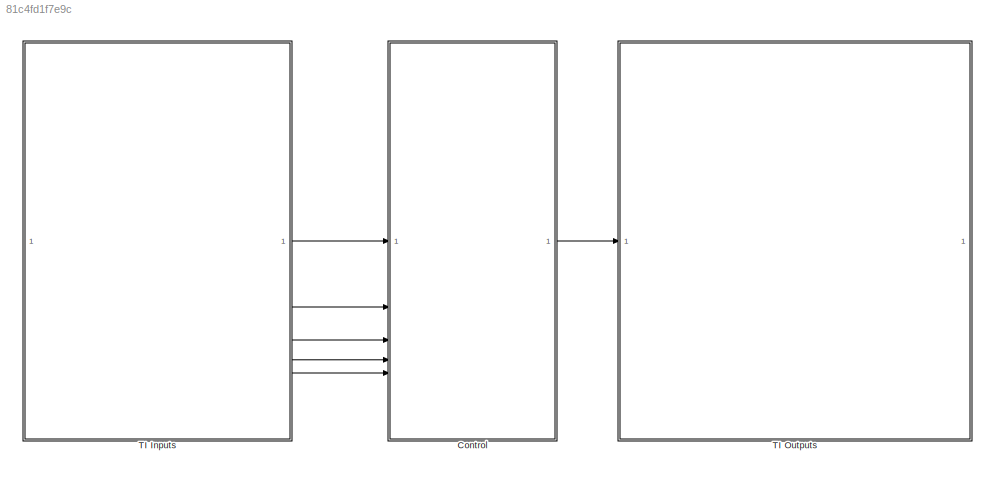
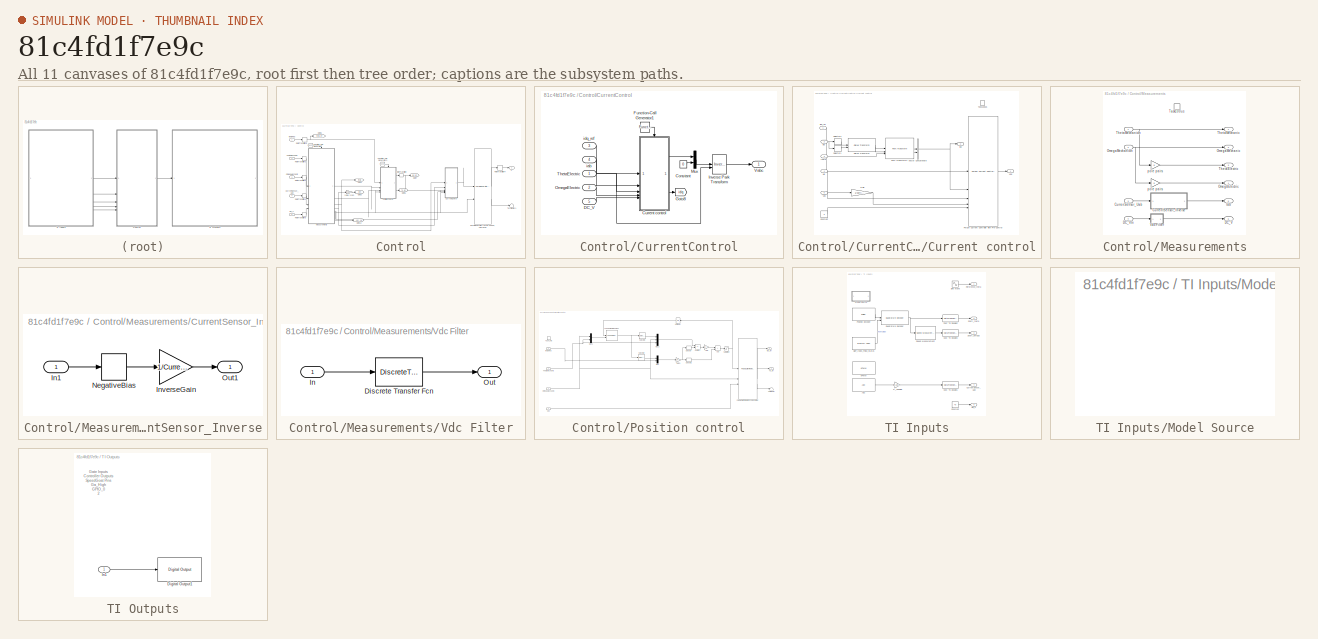
[diagram: thumbnail index - all 11 canvases of the model, root first then tree order]
MODEL slx_81c4fd1f7e9c
KIND model
CONFIG AbsTol = auto
CONFIG EnableMultiTasking = off
CONFIG FixedStep = auto
CONFIG MaxStep = auto
CONFIG MinStep = auto
CONFIG RelTol = 1e-3
CONFIG SampleTimeConstraint = Unconstrained
CONFIG SolverName = VariableStepAuto
CONFIG StartTime = 0.0
CONFIG StopTime = 10.0
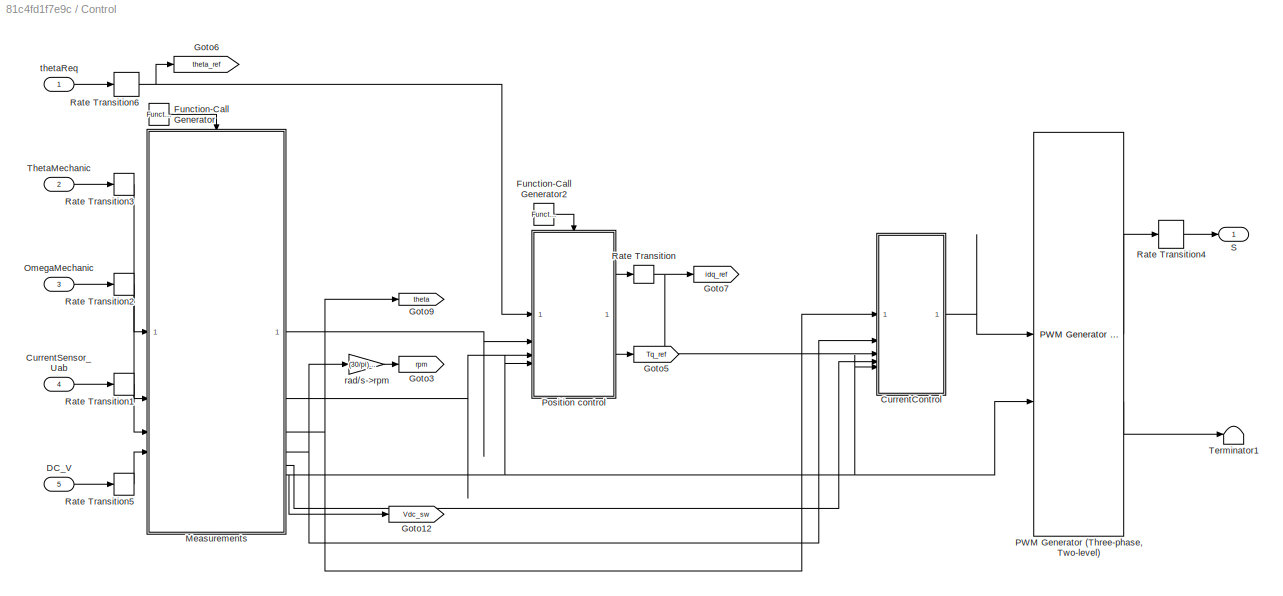
BLOCK [SubSystem] Control
  NameLocation = top
BLOCK [SubSystem] Control/CurrentControl
BLOCK [Constant] Control/CurrentControl/Constant
  SampleTime = -1
  Value = 0
BLOCK [SubSystem] Control/CurrentControl/Current control
BLOCK [Reference] Control/CurrentControl/Current control/Clarke Transform  REF=mcbcontrolslib/Clarke Transform
  LibrarySourceBlock = mcblib/Controls/Math Transforms/Clarke Transform
  SourceBlock = mcbcontrolslib/Clarke Transform
  SourceType = Clarke Transform
BLOCK [Constant] Control/CurrentControl/Current control/Constant
  SampleTime = -1
  Value = 0
BLOCK [Gain] Control/CurrentControl/Current control/Gain
  Gain = 1/sqrt(3)
BLOCK [Reference] Control/CurrentControl/Current control/PMSM Current Controller with Pre-Control  REF=eePmsmCurrentController/PMSM Current Controller
with Pre-Control
  SourceBlock = eePmsmCurrentController/PMSM Current Controller\nwith Pre-Control
  SourceType = PMSM Current Controller with Pre-Control
BLOCK [Reference] Control/CurrentControl/Current control/Park Transform1  REF=mcbcontrolslib/Park Transform
  LibrarySourceBlock = mcblib/Controls/Math Transforms/Park Transform
  SourceBlock = mcbcontrolslib/Park Transform
  SourceType = Park Transform
BLOCK [Selector] Control/CurrentControl/Current control/Selector1
  IndexOptions = Index vector (dialog)
  Indices = 2
  InputPortWidth = 2
  OutputSizes = 1
BLOCK [Selector] Control/CurrentControl/Current control/Selector2
  IndexOptions = Index vector (dialog)
  Indices = 1
  InputPortWidth = 2
  OutputSizes = 1
BLOCK [TriggerPort] Control/CurrentControl/Current control/Task100us
  PortDimensions = 1
  StatesWhenEnabling = held
  TriggerType = function-call
  VariantControl = Variant
BLOCK [Inport] Control/CurrentControl/Current control/Vdc
  Port = 5
BLOCK [Concatenate] Control/CurrentControl/Current control/Vector Concatenate
BLOCK [Inport] Control/CurrentControl/Current control/iab
  Port = 2
BLOCK [Outport] Control/CurrentControl/Current control/idq
  Port = 2
  VectorParamsAs1DForOutWhenUnconnected = off
BLOCK [Inport] Control/CurrentControl/Current control/idq_ref
BLOCK [Inport] Control/CurrentControl/Current control/theta
  Port = 3
BLOCK [Outport] Control/CurrentControl/Current control/vdq
  VectorParamsAs1DForOutWhenUnconnected = off
BLOCK [Inport] Control/CurrentControl/Current control/we
  Port = 4
BLOCK [Inport] Control/CurrentControl/DC_V
  Port = 5
BLOCK [Reference] Control/CurrentControl/Function-Call Generator1  REF=simulink/Ports &
Subsystems/Function-Call
Generator
  SourceBlock = simulink/Ports &\nSubsystems/Function-Call\nGenerator
  SourceType = Function-Call Generator
BLOCK [Goto] Control/CurrentControl/Goto8
  GotoTag = idq
  TagVisibility = global
BLOCK [Reference] Control/CurrentControl/Inverse Park Transform  REF=eeTransforms/Inverse
Park Transform
  SourceBlock = eeTransforms/Inverse\nPark Transform
  SourceType = Inverse Park Transform
BLOCK [Mux] Control/CurrentControl/Mux
  DisplayOption = bar
  Inputs = 2
BLOCK [Inport] Control/CurrentControl/OmegaElectric
  Port = 2
BLOCK [Inport] Control/CurrentControl/ThetaElectric
BLOCK [Outport] Control/CurrentControl/Vabc
BLOCK [Inport] Control/CurrentControl/iab
  Port = 4
BLOCK [Inport] Control/CurrentControl/idq_ref
  Port = 3
BLOCK [Inport] Control/CurrentSensor_Uab
  Port = 4
BLOCK [Inport] Control/DC_V
  Port = 5
BLOCK [Reference] Control/Function-Call Generator  REF=simulink/Ports &
Subsystems/Function-Call
Generator
  SourceBlock = simulink/Ports &\nSubsystems/Function-Call\nGenerator
  SourceType = Function-Call Generator
BLOCK [Reference] Control/Function-Call Generator2  REF=simulink/Ports &
Subsystems/Function-Call
Generator
  SourceBlock = simulink/Ports &\nSubsystems/Function-Call\nGenerator
  SourceType = Function-Call Generator
BLOCK [Goto] Control/Goto12
  GotoTag = Vdc_sw
  TagVisibility = global
BLOCK [Goto] Control/Goto3
  GotoTag = rpm
  TagVisibility = global
BLOCK [Goto] Control/Goto5
  GotoTag = Tq_ref
  TagVisibility = global
BLOCK [Goto] Control/Goto6
  GotoTag = theta_ref
  TagVisibility = global
BLOCK [Goto] Control/Goto7
  GotoTag = idq_ref
  TagVisibility = global
BLOCK [Goto] Control/Goto9
  GotoTag = theta
  TagVisibility = global
BLOCK [SubSystem] Control/Measurements
BLOCK [Inport] Control/Measurements/CurrenSensor_Uab
  Port = 3
BLOCK [SubSystem] Control/Measurements/CurrentSensor_Inverse
BLOCK [Inport] Control/Measurements/CurrentSensor_Inverse/In1
BLOCK [Gain] Control/Measurements/CurrentSensor_Inverse/InverseGain
  Gain = 1/CurrentSensor_Gain
BLOCK [Bias] Control/Measurements/CurrentSensor_Inverse/NegativeBias
  Bias = -CurrentSensor_Bias
  SaturateOnIntegerOverflow = off
BLOCK [Outport] Control/Measurements/CurrentSensor_Inverse/Out1
BLOCK [Outport] Control/Measurements/DC_V
  Port = 6
  VectorParamsAs1DForOutWhenUnconnected = off
BLOCK [Inport] Control/Measurements/DC_VIn
  Port = 4
BLOCK [Outport] Control/Measurements/Iab
  Port = 5
  VectorParamsAs1DForOutWhenUnconnected = off
BLOCK [Outport] Control/Measurements/OmegaElectric
  Port = 4
  VectorParamsAs1DForOutWhenUnconnected = off
BLOCK [Outport] Control/Measurements/OmegaMechanic
  Port = 2
  VectorParamsAs1DForOutWhenUnconnected = off
BLOCK [Inport] Control/Measurements/OmegaMechanicIn
  Port = 2
BLOCK [TriggerPort] Control/Measurements/Task100us
  PortDimensions = 1
  StatesWhenEnabling = held
  TriggerType = function-call
  VariantControl = Variant
BLOCK [Outport] Control/Measurements/ThetaElectric
  Port = 3
  VectorParamsAs1DForOutWhenUnconnected = off
BLOCK [Outport] Control/Measurements/ThetaMechanic
  VectorParamsAs1DForOutWhenUnconnected = off
BLOCK [Inport] Control/Measurements/ThetaMechanicIn
BLOCK [SubSystem] Control/Measurements/Vdc Filter
BLOCK [DiscreteTransferFcn] Control/Measurements/Vdc Filter/Discrete Transfer Fcn
  Denominator = den
  InputPortMap = u0
  Numerator = num
BLOCK [Inport] Control/Measurements/Vdc Filter/In
BLOCK [Outport] Control/Measurements/Vdc Filter/Out
  VectorParamsAs1DForOutWhenUnconnected = off
BLOCK [Gain] Control/Measurements/pole pairs
  Gain = p
BLOCK [Gain] Control/Measurements/pole pairs 
  Gain = p
BLOCK [Inport] Control/OmegaMechanic
  Port = 3
BLOCK [Reference] Control/PWM Generator (Three-phase, Two-level)  REF=eePwmGeneratorTwoLevel/PWM Generator
(Three-phase, Two-level)
  SourceBlock = eePwmGeneratorTwoLevel/PWM Generator\n(Three-phase, Two-level)
  SourceType = PWM Generator (three-phase, two-level)
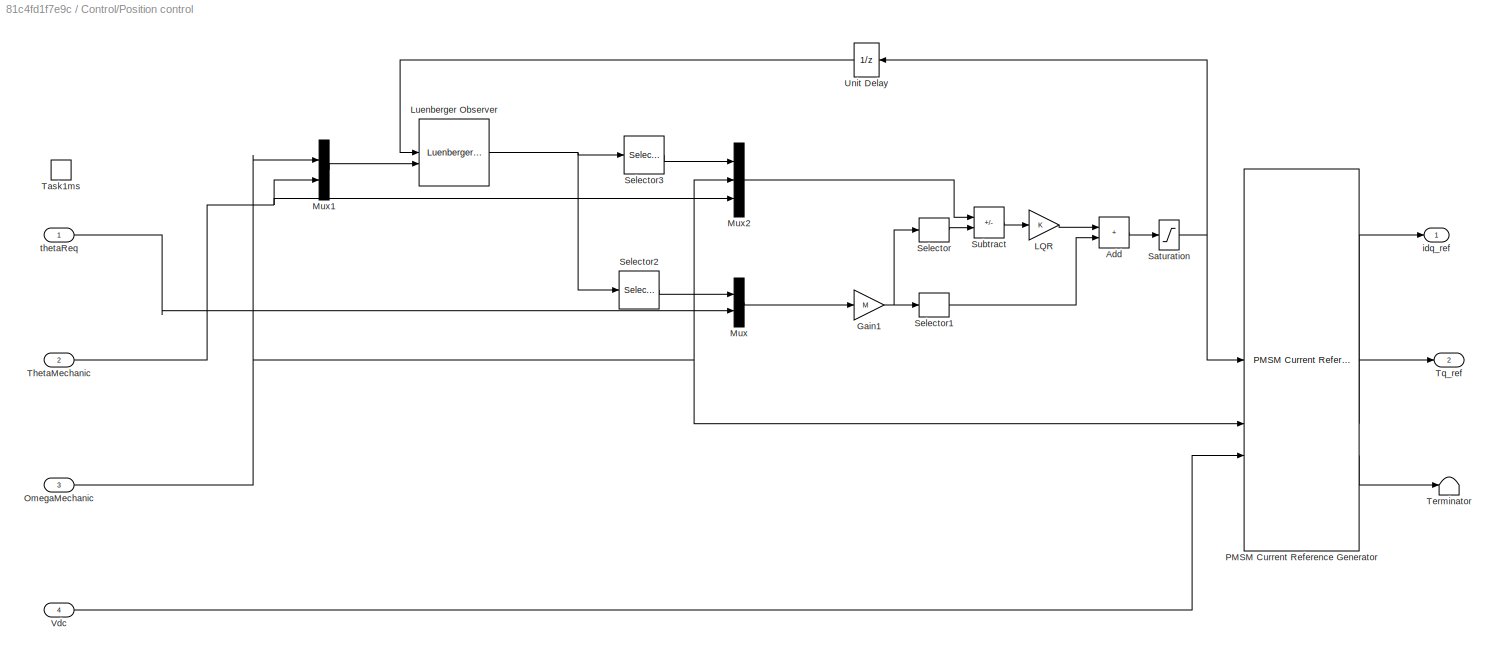
BLOCK [SubSystem] Control/Position control
BLOCK [Sum] Control/Position control/Add
  IconShape = rectangular
BLOCK [Gain] Control/Position control/Gain1
  Gain = M
  Multiplication = Matrix(K*u)
BLOCK [Gain] Control/Position control/LQR
  Gain = K
  Multiplication = Matrix(K*u)
BLOCK [Reference] Control/Position control/Luenberger Observer  REF=eeLuenbergerObserver/Luenberger Observer
  SourceBlock = eeLuenbergerObserver/Luenberger Observer
  SourceType = Luenberger Observer
BLOCK [Mux] Control/Position control/Mux
  DisplayOption = bar
  Inputs = 2
BLOCK [Mux] Control/Position control/Mux1
  DisplayOption = bar
  Inputs = 2
  NameLocation = top
BLOCK [Mux] Control/Position control/Mux2
  DisplayOption = bar
  Inputs = 3
BLOCK [Inport] Control/Position control/OmegaMechanic
  Port = 3
BLOCK [Reference] Control/Position control/PMSM Current Reference Generator  REF=eePmsmCurrentReferenceGen/PMSM Current Reference
Generator
  SourceBlock = eePmsmCurrentReferenceGen/PMSM Current Reference\nGenerator
  SourceType = PMSM Current Reference Generator
BLOCK [Saturate] Control/Position control/Saturation
  LowerLimit = -Tmax
  UpperLimit = Tmax
BLOCK [Selector] Control/Position control/Selector
  IndexOptions = Index vector (dialog)
  Indices = [1:3]
  InputPortWidth = 4
  OutputSizes = 1
BLOCK [Selector] Control/Position control/Selector1
  IndexOptions = Index vector (dialog)
  Indices = 4
  InputPortWidth = 4
  OutputSizes = 1
BLOCK [Selector] Control/Position control/Selector2
  IndexOptions = Index vector (dialog)
  Indices = [4]
  InputPortWidth = 4
  OutputSizes = 1
BLOCK [Selector] Control/Position control/Selector3
  IndexOptions = Index vector (dialog)
  Indices = [1]
  InputPortWidth = 4
  OutputSizes = 1
BLOCK [Sum] Control/Position control/Subtract
  IconShape = rectangular
  Inputs = +-
BLOCK [TriggerPort] Control/Position control/Task1ms
  PortDimensions = 1
  StatesWhenEnabling = held
  TriggerType = function-call
  VariantControl = Variant
BLOCK [Terminator] Control/Position control/Terminator
BLOCK [Inport] Control/Position control/ThetaMechanic
  Port = 2
BLOCK [Outport] Control/Position control/Tq_ref
  Port = 2
  VectorParamsAs1DForOutWhenUnconnected = off
BLOCK [UnitDelay] Control/Position control/Unit Delay
  HasFrameUpgradeWarning = on
  SampleTime = -1
BLOCK [Inport] Control/Position control/Vdc
  Port = 4
BLOCK [Outport] Control/Position control/idq_ref
  VectorParamsAs1DForOutWhenUnconnected = off
BLOCK [Inport] Control/Position control/thetaReq
BLOCK [RateTransition] Control/Rate Transition
BLOCK [RateTransition] Control/Rate Transition1
  OutPortSampleTime = Tsi
BLOCK [RateTransition] Control/Rate Transition2
  OutPortSampleTime = Tsi
BLOCK [RateTransition] Control/Rate Transition3
  OutPortSampleTime = Tsi
BLOCK [RateTransition] Control/Rate Transition4
  OutPortSampleTime = Ts
BLOCK [RateTransition] Control/Rate Transition5
  OutPortSampleTime = Tsi
BLOCK [RateTransition] Control/Rate Transition6
  OutPortSampleTime = Tso
BLOCK [Outport] Control/S
  VectorParamsAs1DForOutWhenUnconnected = off
BLOCK [Terminator] Control/Terminator1
BLOCK [Inport] Control/ThetaMechanic
  Port = 2
BLOCK [Gain] Control/rad//s->rpm
  Gain = (30/pi)/p
BLOCK [Inport] Control/thetaReq
BLOCK [SubSystem] TI Inputs
BLOCK [Reference] TI Inputs/ADC  REF=c2802xlib/ADC
  LibrarySourceBlock = c2806xlib/ADC
  SourceBlock = c2802xlib/ADC
  SourceType = ADC Type 3-5
  UserDataPersistent = on
BLOCK [DataTypeConversion] TI Inputs/Cast To Double1
  OutDataTypeStr = double
  RndMeth = Floor
  SaturateOnIntegerOverflow = off
BLOCK [DataTypeConversion] TI Inputs/Cast To Double2
  OutDataTypeStr = double
  RndMeth = Floor
  SaturateOnIntegerOverflow = off
BLOCK [DataTypeConversion] TI Inputs/Cast To Double3
  OutDataTypeStr = double
  RndMeth = Floor
  SaturateOnIntegerOverflow = off
BLOCK [Constant] TI Inputs/Constant
  Value = 48
BLOCK [Outport] TI Inputs/CurrentSensor_Uab
  Port = 4
BLOCK [Outport] TI Inputs/DC_V
  Port = 5
BLOCK [SubSystem] TI Inputs/Model Source
  CopyFcn = cccopyfcn(gcb)
  OpenFcn = ccopenfcn('Model Source')
BLOCK [Reference] TI Inputs/Position Encoder  REF=c280xlib/eQEP
  AttributesFormatString = -----------------------------\nIndex Interrupt = %<eqepinterrupt_iel>\nMax pos cnt = %<pcMaximumvalue>\nReset Mode = %<pcResetmode>
  SourceBlock = c280xlib/eQEP
  SourceType = C28x eQEP
BLOCK [Reference] TI Inputs/QEP_Index_Pulse_Status  REF=idelinklib_common/Memory Copy
  SourceBlock = idelinklib_common/Memory Copy
  SourceType = Memory Copy
BLOCK [Reference] TI Inputs/Quadrature Decoder  REF=mcbpositiondecoderlib/Quadrature Decoder
  SourceBlock = mcbpositiondecoderlib/Quadrature Decoder
  SourceType = Quadrature Decoder
BLOCK [Outport] TI Inputs/Reference_theta
BLOCK [Outport] TI Inputs/Shaft_omega
  Port = 3
BLOCK [Outport] TI Inputs/Shaft_theta
  Port = 2
BLOCK [Sin] TI Inputs/Sine Wave
  Amplitude = 1800
  Frequency = 0.05
  SampleTime = 0
BLOCK [Reference] TI Inputs/Speed Measurement  REF=mcbpositiondecoderlib/Speed Measurement
  SourceBlock = mcbpositiondecoderlib/Speed Measurement
  SourceType = Speed Measurement
BLOCK [Gain] TI Inputs/TI_ADCGain
  Gain = (TI_ADCMax-TI_ADCMin)/TI_ADCResolution+TI_ADCMin
BLOCK [Reference] TI Inputs/ePWM  REF=c2802xlib/ePWM
  LibrarySourceBlock = c2806xlib/ePWM
  SourceBlock = c2802xlib/ePWM
  SourceType = ePWM Type 1-4
  UserDataPersistent = on
BLOCK [SubSystem] TI Outputs
BLOCK [Reference] TI Outputs/Digital Output1  REF=c2806xlib/Digital Output
  SourceBlock = c2806xlib/Digital Output
  SourceType = C2806x GPIO Digital Output
  UserDataPersistent = on
BLOCK [Inport] TI Outputs/In1
ANNOTATION TI Outputs: Gate Inputs Controller Outputs SpeedGoat Pins Ga_High GPIO_0 2 Ga_Low GPIO_1 6 Gb_High GPIO_2 4 Gb_Low GPIO_3 1 Gc_High GPIO_4 5 Gc_Low GPIO_6 3
LINE Control/CurrentControl/Constant:1 -> Control/CurrentControl/Mux:2
LINE Control/CurrentControl/Current control/Clarke Transform:1 -> Control/CurrentControl/Current control/Park Transform1:1
LINE Control/CurrentControl/Current control/Clarke Transform:2 -> Control/CurrentControl/Current control/Park Transform1:2
LINE Control/CurrentControl/Current control/Constant:1 -> Control/CurrentControl/Current control/PMSM Current Controller with Pre-Control:5
LINE Control/CurrentControl/Current control/Gain:1 -> Control/CurrentControl/Current control/PMSM Current Controller with Pre-Control:4
LINE Control/CurrentControl/Current control/PMSM Current Controller with Pre-Control:1 -> Control/CurrentControl/Current control/vdq:1
LINE Control/CurrentControl/Current control/Park Transform1:1 -> Control/CurrentControl/Current control/Vector Concatenate:1
LINE Control/CurrentControl/Current control/Park Transform1:2 -> Control/CurrentControl/Current control/Vector Concatenate:2
LINE Control/CurrentControl/Current control/Selector1:1 -> Control/CurrentControl/Current control/Clarke Transform:2
LINE Control/CurrentControl/Current control/Selector2:1 -> Control/CurrentControl/Current control/Clarke Transform:1
LINE Control/CurrentControl/Current control/Vdc:1 -> Control/CurrentControl/Current control/Gain:1
NET Control/CurrentControl/Current control/Vector Concatenate:1 -> Control/CurrentControl/Current control/PMSM Current Controller with Pre-Control:2, Control/CurrentControl/Current control/idq:1
NET Control/CurrentControl/Current control/iab:1 -> Control/CurrentControl/Current control/Selector1:1, Control/CurrentControl/Current control/Selector2:1
LINE Control/CurrentControl/Current control/idq_ref:1 -> Control/CurrentControl/Current control/PMSM Current Controller with Pre-Control:1
LINE Control/CurrentControl/Current control/theta:1 -> Control/CurrentControl/Current control/Park Transform1:3
LINE Control/CurrentControl/Current control/we:1 -> Control/CurrentControl/Current control/PMSM Current Controller with Pre-Control:3
LINE Control/CurrentControl/Current control:1 -> Control/CurrentControl/Mux:1
LINE Control/CurrentControl/Current control:2 -> Control/CurrentControl/Goto8:1
LINE Control/CurrentControl/DC_V:1 -> Control/CurrentControl/Current control:5
LINE Control/CurrentControl/Function-Call Generator1:1 -> Control/CurrentControl/Current control:trigger
LINE Control/CurrentControl/Inverse Park Transform:1 -> Control/CurrentControl/Vabc:1
LINE Control/CurrentControl/Mux:1 -> Control/CurrentControl/Inverse Park Transform:1
LINE Control/CurrentControl/OmegaElectric:1 -> Control/CurrentControl/Current control:4
NET Control/CurrentControl/ThetaElectric:1 -> Control/CurrentControl/Current control:3, Control/CurrentControl/Inverse Park Transform:2
LINE Control/CurrentControl/iab:1 -> Control/CurrentControl/Current control:2
LINE Control/CurrentControl/idq_ref:1 -> Control/CurrentControl/Current control:1
LINE Control/CurrentControl:1 -> Control/PWM Generator (Three-phase, Two-level):1
LINE Control/CurrentSensor_Uab:1 -> Control/Rate Transition1:1
LINE Control/DC_V:1 -> Control/Rate Transition5:1
LINE Control/Function-Call Generator2:1 -> Control/Position control:trigger
LINE Control/Function-Call Generator:1 -> Control/Measurements:trigger
LINE Control/Measurements/CurrenSensor_Uab:1 -> Control/Measurements/CurrentSensor_Inverse:1
LINE Control/Measurements/CurrentSensor_Inverse/In1:1 -> Control/Measurements/CurrentSensor_Inverse/NegativeBias:1
LINE Control/Measurements/CurrentSensor_Inverse/InverseGain:1 -> Control/Measurements/CurrentSensor_Inverse/Out1:1
LINE Control/Measurements/CurrentSensor_Inverse/NegativeBias:1 -> Control/Measurements/CurrentSensor_Inverse/InverseGain:1
LINE Control/Measurements/CurrentSensor_Inverse:1 -> Control/Measurements/Iab:1
LINE Control/Measurements/DC_VIn:1 -> Control/Measurements/Vdc Filter:1
NET Control/Measurements/OmegaMechanicIn:1 -> Control/Measurements/OmegaMechanic:1, Control/Measurements/pole pairs:1
NET Control/Measurements/ThetaMechanicIn:1 -> Control/Measurements/ThetaMechanic:1, Control/Measurements/pole pairs :1
LINE Control/Measurements/Vdc Filter/Discrete Transfer Fcn:1 -> Control/Measurements/Vdc Filter/Out:1
LINE Control/Measurements/Vdc Filter/In:1 -> Control/Measurements/Vdc Filter/Discrete Transfer Fcn:1
LINE Control/Measurements/Vdc Filter:1 -> Control/Measurements/DC_V:1
LINE Control/Measurements/pole pairs :1 -> Control/Measurements/ThetaElectric:1
LINE Control/Measurements/pole pairs:1 -> Control/Measurements/OmegaElectric:1
LINE Control/Measurements:1 -> Control/Position control:2
LINE Control/Measurements:2 -> Control/Position control:3
NET Control/Measurements:3 -> Control/CurrentControl:1, Control/Goto9:1
NET Control/Measurements:4 -> Control/CurrentControl:2, Control/rad//s->rpm:1
LINE Control/Measurements:5 -> Control/CurrentControl:4
NET Control/Measurements:6 -> Control/CurrentControl:5, Control/Goto12:1, Control/PWM Generator (Three-phase, Two-level):2, Control/Position control:4
LINE Control/OmegaMechanic:1 -> Control/Rate Transition2:1
LINE Control/PWM Generator (Three-phase, Two-level):1 -> Control/Rate Transition4:1
LINE Control/PWM Generator (Three-phase, Two-level):2 -> Control/Terminator1:1
LINE Control/Position control/Add:1 -> Control/Position control/Saturation:1
NET Control/Position control/Gain1:1 -> Control/Position control/Selector1:1, Control/Position control/Selector:1
LINE Control/Position control/LQR:1 -> Control/Position control/Add:1
NET Control/Position control/Luenberger Observer:1 -> Control/Position control/Selector2:1, Control/Position control/Selector3:1
LINE Control/Position control/Mux1:1 -> Control/Position control/Luenberger Observer:2
LINE Control/Position control/Mux2:1 -> Control/Position control/Subtract:1
LINE Control/Position control/Mux:1 -> Control/Position control/Gain1:1
NET Control/Position control/OmegaMechanic:1 -> Control/Position control/Mux1:1, Control/Position control/Mux2:2, Control/Position control/PMSM Current Reference Generator:2
LINE Control/Position control/PMSM Current Reference Generator:1 -> Control/Position control/idq_ref:1
LINE Control/Position control/PMSM Current Reference Generator:2 -> Control/Position control/Tq_ref:1
LINE Control/Position control/PMSM Current Reference Generator:3 -> Control/Position control/Terminator:1
NET Control/Position control/Saturation:1 -> Control/Position control/PMSM Current Reference Generator:1, Control/Position control/Unit Delay:1
LINE Control/Position control/Selector1:1 -> Control/Position control/Add:2
LINE Control/Position control/Selector2:1 -> Control/Position control/Mux:1
LINE Control/Position control/Selector3:1 -> Control/Position control/Mux2:1
LINE Control/Position control/Selector:1 -> Control/Position control/Subtract:2
LINE Control/Position control/Subtract:1 -> Control/Position control/LQR:1
NET Control/Position control/ThetaMechanic:1 -> Control/Position control/Mux1:2, Control/Position control/Mux2:3
LINE Control/Position control/Unit Delay:1 -> Control/Position control/Luenberger Observer:1
LINE Control/Position control/Vdc:1 -> Control/Position control/PMSM Current Reference Generator:3
LINE Control/Position control/thetaReq:1 -> Control/Position control/Mux:2
LINE Control/Position control:1 -> Control/Rate Transition:1
LINE Control/Position control:2 -> Control/Goto5:1
LINE Control/Rate Transition1:1 -> Control/Measurements:3
LINE Control/Rate Transition2:1 -> Control/Measurements:2
LINE Control/Rate Transition3:1 -> Control/Measurements:1
LINE Control/Rate Transition4:1 -> Control/S:1
LINE Control/Rate Transition5:1 -> Control/Measurements:4
NET Control/Rate Transition6:1 -> Control/Goto6:1, Control/Position control:1
NET Control/Rate Transition:1 -> Control/CurrentControl:3, Control/Goto7:1
LINE Control/ThetaMechanic:1 -> Control/Rate Transition3:1
LINE Control/rad//s->rpm:1 -> Control/Goto3:1
LINE Control/thetaReq:1 -> Control/Rate Transition6:1
LINE Control:1 -> TI Outputs:1
LINE TI Inputs/ADC:1 -> TI Inputs/TI_ADCGain:1
LINE TI Inputs/Cast To Double1:1 -> TI Inputs/CurrentSensor_Uab:1
LINE TI Inputs/Cast To Double2:1 -> TI Inputs/Shaft_theta:1
LINE TI Inputs/Cast To Double3:1 -> TI Inputs/Shaft_omega:1
LINE TI Inputs/Constant:1 -> TI Inputs/DC_V:1
LINE TI Inputs/Position Encoder:1 -> TI Inputs/Quadrature Decoder:1
LINE TI Inputs/QEP_Index_Pulse_Status:1 -> TI Inputs/Quadrature Decoder:2
NET TI Inputs/Quadrature Decoder:1 -> TI Inputs/Cast To Double2:1, TI Inputs/Speed Measurement:1
LINE TI Inputs/Sine Wave:1 -> TI Inputs/Reference_theta:1
LINE TI Inputs/Speed Measurement:1 -> TI Inputs/Cast To Double3:1
LINE TI Inputs/TI_ADCGain:1 -> TI Inputs/Cast To Double1:1
LINE TI Inputs:1 -> Control:1
LINE TI Inputs:2 -> Control:2
LINE TI Inputs:3 -> Control:3
LINE TI Inputs:4 -> Control:4
LINE TI Inputs:5 -> Control:5
LINE TI Outputs/In1:1 -> TI Outputs/Digital Output1:1
note: NET lines group one-source signal fan-out (src -> all destinations, sorted); 1:1 wires keep LINE
